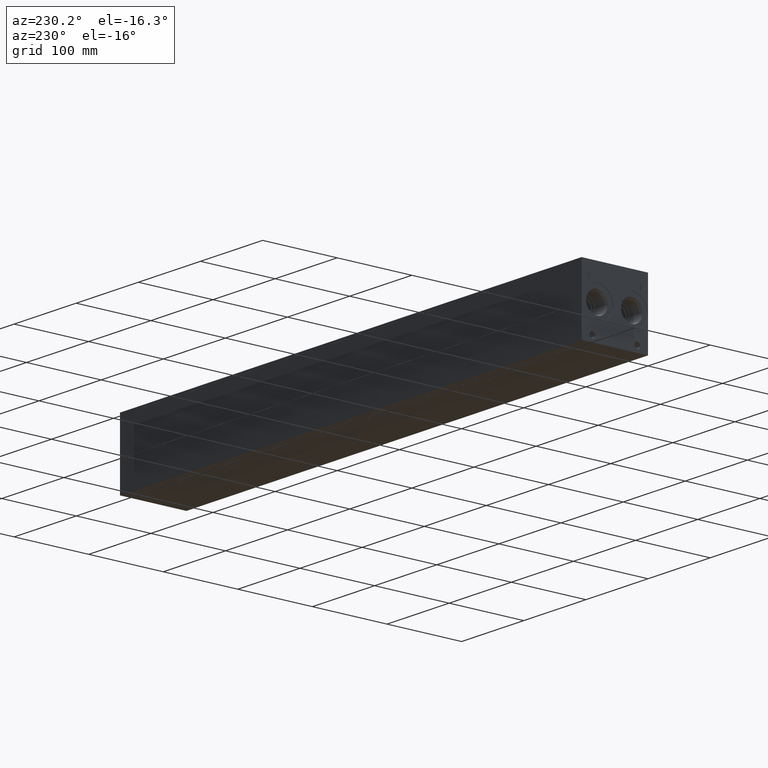
[diagram: clean part render]
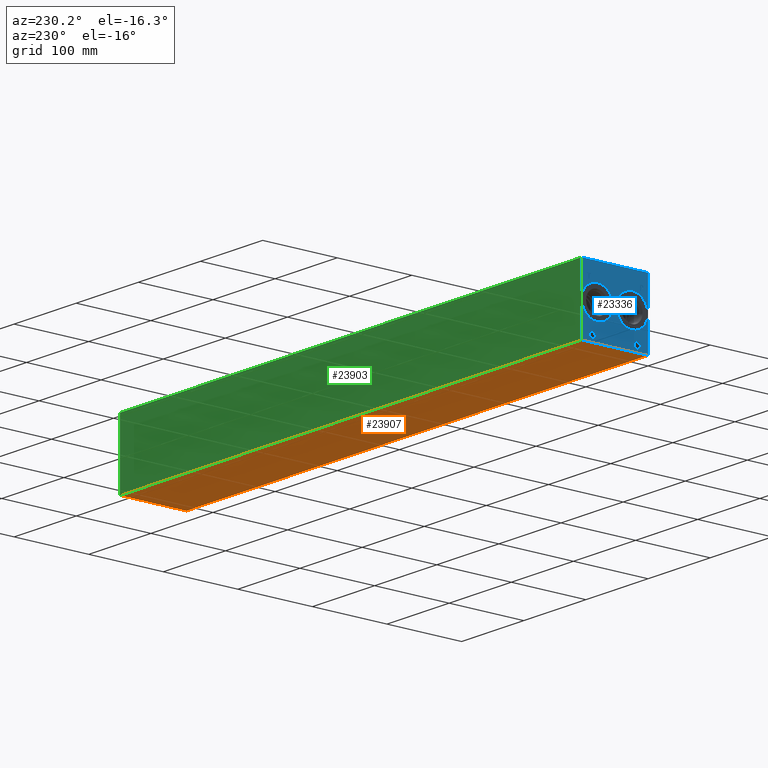
[diagram: same view with three faces highlighted in distinct colors, each labeled with its STEP entity id]
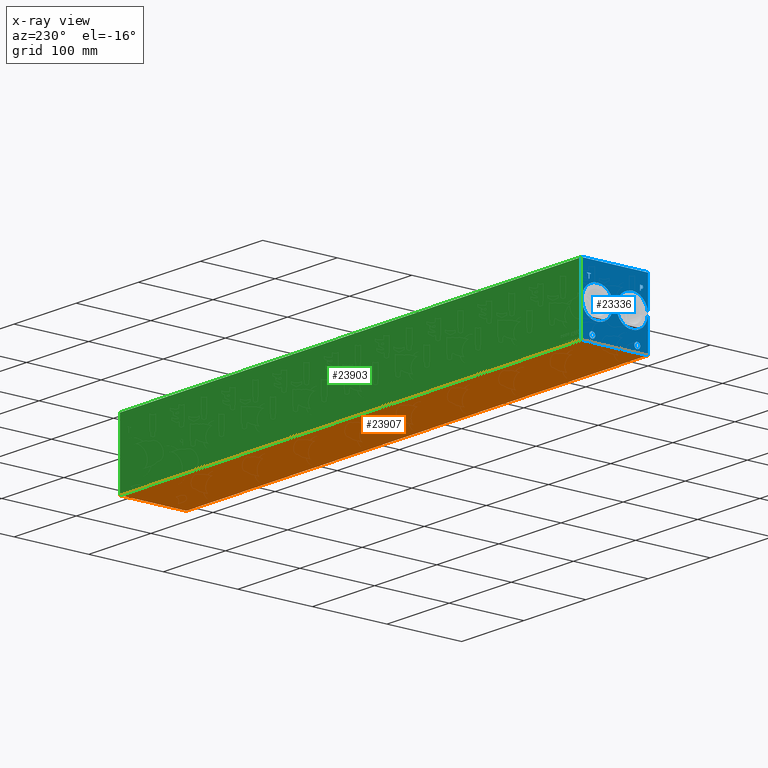
[diagram: x-ray of the same camera — body ghosted, the three highlighted faces saturated]
A machine part, auxiliary view with three faces highlighted in distinct colors.
The next image is the same camera in x-ray (body ghosted, the three faces saturated) — at least one of them is partly hidden behind the body in this view.
Their STEP definitions:

[orange] entity #23907 — the highlighted planar face has unit normal (0, 0, 1).
#3612=FACE_OUTER_BOUND('',#5134,.T.);
#5134=EDGE_LOOP('',(#21331,#21332,#21333,#21334));
#5168=LINE('',#31475,#7095);
#6493=LINE('',#38321,#8420);
#6528=LINE('',#38544,#8455);
#7060=LINE('',#41857,#8987);
#7095=VECTOR('',#25834,10.);
#8420=VECTOR('',#28075,10.);
#8455=VECTOR('',#28146,10.);
#8987=VECTOR('',#31394,10.);
#9011=VERTEX_POINT('',#31473);
#9012=VERTEX_POINT('',#31474);
#10267=VERTEX_POINT('',#38320);
#10309=VERTEX_POINT('',#38543);
#11366=EDGE_CURVE('',#9011,#9012,#5168,.T.);
#13211=EDGE_CURVE('',#9012,#10267,#6493,.T.);
#13270=EDGE_CURVE('',#10309,#9011,#6528,.T.);
#14665=EDGE_CURVE('',#10267,#10309,#7060,.T.);
#21331=ORIENTED_EDGE('',*,*,#11366,.F.);
#21332=ORIENTED_EDGE('',*,*,#13270,.F.);
#21333=ORIENTED_EDGE('',*,*,#14665,.F.);
#21334=ORIENTED_EDGE('',*,*,#13211,.F.);
#21921=PLANE('',#25772);
#23907=ADVANCED_FACE('',(#3612),#21921,.F.);
#25772=AXIS2_PLACEMENT_3D('',#41862,#31402,#31403);
#25834=DIRECTION('',(1.,0.,0.));
#28075=DIRECTION('',(0.,1.,0.));
#28146=DIRECTION('',(0.,-1.,0.));
#31394=DIRECTION('',(-1.,0.,0.));
#31402=DIRECTION('center_axis',(0.,0.,1.));
#31403=DIRECTION('ref_axis',(1.,0.,0.));
#31473=CARTESIAN_POINT('',(0.,0.,0.));
#31474=CARTESIAN_POINT('',(742.95,0.,0.));
#31475=CARTESIAN_POINT('',(0.,0.,0.));
#38320=CARTESIAN_POINT('',(742.95,88.9,0.));
#38321=CARTESIAN_POINT('',(742.95,0.,0.));
#38543=CARTESIAN_POINT('',(0.,88.9,0.));
#38544=CARTESIAN_POINT('',(0.,88.9,0.));
#41857=CARTESIAN_POINT('',(742.95,88.9,0.));
#41862=CARTESIAN_POINT('Origin',(371.475,44.45,0.));

[blue] entity #23336 — the highlighted planar face has unit normal (-1, 0, 0).
#730=CIRCLE('',#24411,21.0185);
#731=CIRCLE('',#24412,21.0185);
#732=CIRCLE('',#24413,21.0185);
#733=CIRCLE('',#24414,21.0185);
#734=CIRCLE('',#24415,3.9624);
#735=CIRCLE('',#24416,3.9624);
#736=CIRCLE('',#24417,3.9624);
#737=CIRCLE('',#24418,3.9624);
#2039=B_SPLINE_CURVE_WITH_KNOTS('',2,(#38445,#38446,#38447,#38448),
 .UNSPECIFIED.,.F.,.F.,(3,1,3),(0.,1.,2.),.UNSPECIFIED.);
#2041=B_SPLINE_CURVE_WITH_KNOTS('',2,(#38466,#38467,#38468,#38469),
 .UNSPECIFIED.,.F.,.F.,(3,1,3),(0.,1.,2.),.UNSPECIFIED.);
#2043=B_SPLINE_CURVE_WITH_KNOTS('',2,(#38515,#38516,#38517,#38518),
 .UNSPECIFIED.,.F.,.F.,(3,1,3),(0.,1.,2.),.UNSPECIFIED.);
#2045=B_SPLINE_CURVE_WITH_KNOTS('',2,(#38533,#38534,#38535,#38536),
 .UNSPECIFIED.,.F.,.F.,(3,1,3),(0.,1.,2.),.UNSPECIFIED.);
#2186=FACE_BOUND('',#4394,.T.);
#2187=FACE_BOUND('',#4395,.T.);
#2188=FACE_BOUND('',#4396,.T.);
#2189=FACE_BOUND('',#4397,.T.);
#2190=FACE_BOUND('',#4398,.T.);
#2191=FACE_BOUND('',#4399,.T.);
#3041=FACE_OUTER_BOUND('',#4393,.T.);
#4393=EDGE_LOOP('',(#18419,#18420,#18421,#18422));
#4394=EDGE_LOOP('',(#18423,#18424,#18425,#18426,#18427,#18428,#18429,#18430));
#4395=EDGE_LOOP('',(#18431,#18432));
#4396=EDGE_LOOP('',(#18433,#18434));
#4397=EDGE_LOOP('',(#18435,#18436));
#4398=EDGE_LOOP('',(#18437,#18438));
#4399=EDGE_LOOP('',(#18439,#18440,#18441,#18442,#18443,#18444,#18445,#18446,
#18447));
#5171=LINE('',#31480,#7098);
#6437=LINE('',#38072,#8364);
#6441=LINE('',#38080,#8368);
#6444=LINE('',#38086,#8371);
#6447=LINE('',#38092,#8374);
#6450=LINE('',#38098,#8377);
#6453=LINE('',#38104,#8380);
#6456=LINE('',#38110,#8383);
#6459=LINE('',#38115,#8386);
#6512=LINE('',#38478,#8439);
#6515=LINE('',#38484,#8442);
#6518=LINE('',#38490,#8445);
#6521=LINE('',#38496,#8448);
#6524=LINE('',#38502,#8451);
#6528=LINE('',#38544,#8455);
#6529=LINE('',#38546,#8456);
#6530=LINE('',#38547,#8457);
#7098=VECTOR('',#25837,10.);
#8364=VECTOR('',#27983,10.);
#8368=VECTOR('',#27989,10.);
#8371=VECTOR('',#27994,10.);
#8374=VECTOR('',#27999,10.);
#8377=VECTOR('',#28004,10.);
#8380=VECTOR('',#28009,10.);
#8383=VECTOR('',#28014,10.);
#8386=VECTOR('',#28019,10.);
#8439=VECTOR('',#28118,10.);
#8442=VECTOR('',#28123,10.);
#8445=VECTOR('',#28128,10.);
#8448=VECTOR('',#28133,10.);
#8451=VECTOR('',#28138,10.);
#8455=VECTOR('',#28146,10.);
#8456=VECTOR('',#28147,10.);
#8457=VECTOR('',#28148,10.);
#9011=VERTEX_POINT('',#31473);
#9014=VERTEX_POINT('',#31478);
#10219=VERTEX_POINT('',#38070);
#10220=VERTEX_POINT('',#38071);
#10223=VERTEX_POINT('',#38079);
#10225=VERTEX_POINT('',#38085);
#10227=VERTEX_POINT('',#38091);
#10229=VERTEX_POINT('',#38097);
#10231=VERTEX_POINT('',#38103);
#10233=VERTEX_POINT('',#38109);
#10291=VERTEX_POINT('',#38443);
#10292=VERTEX_POINT('',#38444);
#10295=VERTEX_POINT('',#38465);
#10297=VERTEX_POINT('',#38477);
#10299=VERTEX_POINT('',#38483);
#10301=VERTEX_POINT('',#38489);
#10303=VERTEX_POINT('',#38495);
#10305=VERTEX_POINT('',#38501);
#10307=VERTEX_POINT('',#38514);
#10309=VERTEX_POINT('',#38543);
#10310=VERTEX_POINT('',#38545);
#10311=VERTEX_POINT('',#38548);
#10312=VERTEX_POINT('',#38549);
#10313=VERTEX_POINT('',#38552);
#10314=VERTEX_POINT('',#38553);
#10315=VERTEX_POINT('',#38556);
#10316=VERTEX_POINT('',#38557);
#10317=VERTEX_POINT('',#38560);
#10318=VERTEX_POINT('',#38561);
#11369=EDGE_CURVE('',#9011,#9014,#5171,.T.);
#13139=EDGE_CURVE('',#10219,#10220,#6437,.T.);
#13143=EDGE_CURVE('',#10223,#10219,#6441,.T.);
#13146=EDGE_CURVE('',#10225,#10223,#6444,.T.);
#13149=EDGE_CURVE('',#10227,#10225,#6447,.T.);
#13152=EDGE_CURVE('',#10229,#10227,#6450,.T.);
#13155=EDGE_CURVE('',#10231,#10229,#6453,.T.);
#13158=EDGE_CURVE('',#10233,#10231,#6456,.T.);
#13161=EDGE_CURVE('',#10220,#10233,#6459,.T.);
#13243=EDGE_CURVE('',#10291,#10292,#2039,.T.);
#13247=EDGE_CURVE('',#10295,#10291,#2041,.T.);
#13250=EDGE_CURVE('',#10297,#10295,#6512,.T.);
#13253=EDGE_CURVE('',#10299,#10297,#6515,.T.);
#13256=EDGE_CURVE('',#10301,#10299,#6518,.T.);
#13259=EDGE_CURVE('',#10303,#10301,#6521,.T.);
#13262=EDGE_CURVE('',#10305,#10303,#6524,.T.);
#13265=EDGE_CURVE('',#10307,#10305,#2043,.T.);
#13268=EDGE_CURVE('',#10292,#10307,#2045,.T.);
#13270=EDGE_CURVE('',#10309,#9011,#6528,.T.);
#13271=EDGE_CURVE('',#10310,#9014,#6529,.T.);
#13272=EDGE_CURVE('',#10309,#10310,#6530,.T.);
#13273=EDGE_CURVE('',#10311,#10312,#730,.T.);
#13274=EDGE_CURVE('',#10312,#10311,#731,.T.);
#13275=EDGE_CURVE('',#10313,#10314,#732,.T.);
#13276=EDGE_CURVE('',#10314,#10313,#733,.T.);
#13277=EDGE_CURVE('',#10315,#10316,#734,.T.);
#13278=EDGE_CURVE('',#10316,#10315,#735,.T.);
#13279=EDGE_CURVE('',#10317,#10318,#736,.T.);
#13280=EDGE_CURVE('',#10318,#10317,#737,.T.);
#18419=ORIENTED_EDGE('',*,*,#13270,.T.);
#18420=ORIENTED_EDGE('',*,*,#11369,.T.);
#18421=ORIENTED_EDGE('',*,*,#13271,.F.);
#18422=ORIENTED_EDGE('',*,*,#13272,.F.);
#18423=ORIENTED_EDGE('',*,*,#13139,.T.);
#18424=ORIENTED_EDGE('',*,*,#13161,.T.);
#18425=ORIENTED_EDGE('',*,*,#13158,.T.);
#18426=ORIENTED_EDGE('',*,*,#13155,.T.);
#18427=ORIENTED_EDGE('',*,*,#13152,.T.);
#18428=ORIENTED_EDGE('',*,*,#13149,.T.);
#18429=ORIENTED_EDGE('',*,*,#13146,.T.);
#18430=ORIENTED_EDGE('',*,*,#13143,.T.);
#18431=ORIENTED_EDGE('',*,*,#13273,.T.);
#18432=ORIENTED_EDGE('',*,*,#13274,.T.);
#18433=ORIENTED_EDGE('',*,*,#13275,.T.);
#18434=ORIENTED_EDGE('',*,*,#13276,.T.);
#18435=ORIENTED_EDGE('',*,*,#13277,.T.);
#18436=ORIENTED_EDGE('',*,*,#13278,.T.);
#18437=ORIENTED_EDGE('',*,*,#13279,.T.);
#18438=ORIENTED_EDGE('',*,*,#13280,.T.);
#18439=ORIENTED_EDGE('',*,*,#13243,.T.);
#18440=ORIENTED_EDGE('',*,*,#13268,.T.);
#18441=ORIENTED_EDGE('',*,*,#13265,.T.);
#18442=ORIENTED_EDGE('',*,*,#13262,.T.);
#18443=ORIENTED_EDGE('',*,*,#13259,.T.);
#18444=ORIENTED_EDGE('',*,*,#13256,.T.);
#18445=ORIENTED_EDGE('',*,*,#13253,.T.);
#18446=ORIENTED_EDGE('',*,*,#13250,.T.);
#18447=ORIENTED_EDGE('',*,*,#13247,.T.);
#21777=PLANE('',#24410);
#23336=ADVANCED_FACE('',(#3041,#2186,#2187,#2188,#2189,#2190,#2191),#21777,
 .T.);
#24410=AXIS2_PLACEMENT_3D('',#38542,#28144,#28145);
#24411=AXIS2_PLACEMENT_3D('',#38550,#28149,#28150);
#24412=AXIS2_PLACEMENT_3D('',#38551,#28151,#28152);
#24413=AXIS2_PLACEMENT_3D('',#38554,#28153,#28154);
#24414=AXIS2_PLACEMENT_3D('',#38555,#28155,#28156);
#24415=AXIS2_PLACEMENT_3D('',#38558,#28157,#28158);
#24416=AXIS2_PLACEMENT_3D('',#38559,#28159,#28160);
#24417=AXIS2_PLACEMENT_3D('',#38562,#28161,#28162);
#24418=AXIS2_PLACEMENT_3D('',#38563,#28163,#28164);
#25837=DIRECTION('',(0.,0.,1.));
#27983=DIRECTION('',(0.,1.,1.0524411238433E-14));
#27989=DIRECTION('',(0.,3.17280044688052E-15,-1.));
#27994=DIRECTION('',(0.,1.,4.16909044227778E-15));
#27999=DIRECTION('',(0.,0.,-1.));
#28004=DIRECTION('',(0.,-1.,-3.47984565141734E-15));
#28009=DIRECTION('',(0.,0.,1.));
#28014=DIRECTION('',(0.,1.,0.));
#28019=DIRECTION('',(0.,-3.17280044688052E-15,1.));
#28118=DIRECTION('',(0.,-1.,-5.56775304226775E-15));
#28123=DIRECTION('',(0.,-3.14708893596576E-15,1.));
#28128=DIRECTION('',(0.,1.,0.));
#28133=DIRECTION('',(0.,3.75218139804999E-15,-1.));
#28138=DIRECTION('',(0.,1.,1.24172909575755E-14));
#28144=DIRECTION('center_axis',(-1.,0.,0.));
#28145=DIRECTION('ref_axis',(0.,-1.,0.));
#28146=DIRECTION('',(0.,-1.,0.));
#28147=DIRECTION('',(0.,-1.,0.));
#28148=DIRECTION('',(0.,0.,1.));
#28149=DIRECTION('center_axis',(1.,0.,0.));
#28150=DIRECTION('ref_axis',(0.,0.,1.));
#28151=DIRECTION('center_axis',(1.,0.,0.));
#28152=DIRECTION('ref_axis',(0.,0.,1.));
#28153=DIRECTION('center_axis',(1.,0.,0.));
#28154=DIRECTION('ref_axis',(0.,0.,1.));
#28155=DIRECTION('center_axis',(1.,0.,0.));
#28156=DIRECTION('ref_axis',(0.,0.,1.));
#28157=DIRECTION('center_axis',(1.,0.,0.));
#28158=DIRECTION('ref_axis',(0.,1.,0.));
#28159=DIRECTION('center_axis',(1.,0.,0.));
#28160=DIRECTION('ref_axis',(0.,1.,0.));
#28161=DIRECTION('center_axis',(1.,0.,0.));
#28162=DIRECTION('ref_axis',(0.,1.,0.));
#28163=DIRECTION('center_axis',(1.,0.,0.));
#28164=DIRECTION('ref_axis',(0.,1.,0.));
#31473=CARTESIAN_POINT('',(0.,0.,0.));
#31478=CARTESIAN_POINT('',(0.,0.,88.9));
#31480=CARTESIAN_POINT('',(0.,0.,0.));
#38070=CARTESIAN_POINT('',(0.,78.787084728547,67.46875));
#38071=CARTESIAN_POINT('',(0.,79.6310069200865,67.46875));
#38072=CARTESIAN_POINT('',(0.,83.8435423642731,67.46875));
#38079=CARTESIAN_POINT('',(0.,78.787084728547,73.0674533194815));
#38080=CARTESIAN_POINT('',(0.,78.7870847285471,36.5337266597407));
#38085=CARTESIAN_POINT('',(0.,76.6566957816119,73.0674533194815));
#38086=CARTESIAN_POINT('',(0.,82.7783478908058,73.0674533194815));
#38091=CARTESIAN_POINT('',(0.,76.6566957816119,73.8187499046325));
#38092=CARTESIAN_POINT('',(0.,76.6566957816119,36.9093749523163));
#38097=CARTESIAN_POINT('',(0.,81.7613958670216,73.8187499046326));
#38098=CARTESIAN_POINT('',(0.,85.3306979335107,73.8187499046326));
#38103=CARTESIAN_POINT('',(0.,81.7613958670216,73.0674533194815));
#38104=CARTESIAN_POINT('',(0.,81.7613958670216,36.5337266597408));
#38109=CARTESIAN_POINT('',(0.,79.6310069200865,73.0674533194815));
#38110=CARTESIAN_POINT('',(0.,84.2655034600432,73.0674533194815));
#38115=CARTESIAN_POINT('',(0.,79.6310069200866,33.734375));
#38443=CARTESIAN_POINT('',(0.,7.21193279764059,73.4225181439707));
#38444=CARTESIAN_POINT('',(0.,6.455490345468,71.9044873726039));
#38445=CARTESIAN_POINT('Ctrl Pts',(0.,7.21193279764059,73.4225181439707));
#38446=CARTESIAN_POINT('Ctrl Pts',(0.,6.85686797315142,73.1806623939563));
#38447=CARTESIAN_POINT('Ctrl Pts',(0.,6.455490345468,72.4345116758269));
#38448=CARTESIAN_POINT('Ctrl Pts',(0.,6.455490345468,71.9044873726039));
#38465=CARTESIAN_POINT('',(0.,8.87404784561168,73.8187499046325));
#38466=CARTESIAN_POINT('Ctrl Pts',(0.,8.87404784561168,73.8187499046325));
#38467=CARTESIAN_POINT('Ctrl Pts',(0.,8.30800247323763,73.8187499046325));
#38468=CARTESIAN_POINT('Ctrl Pts',(0.,7.51553895191395,73.6334986918556));
#38469=CARTESIAN_POINT('Ctrl Pts',(0.,7.21193279764059,73.4225181439707));
#38477=CARTESIAN_POINT('',(0.,10.4692666223022,73.8187499046326));
#38478=CARTESIAN_POINT('',(0.,49.6846333111509,73.8187499046328));
#38483=CARTESIAN_POINT('',(0.,10.4692666223022,67.46875));
#38484=CARTESIAN_POINT('',(0.,10.4692666223023,33.7343749999999));
#38489=CARTESIAN_POINT('',(0.,9.62534443076272,67.46875));
#38490=CARTESIAN_POINT('',(0.,49.2626722153814,67.46875));
#38495=CARTESIAN_POINT('',(0.,9.62534443076271,69.8358488299279));
#38496=CARTESIAN_POINT('',(0.,9.62534443076284,34.9179244149638));
#38501=CARTESIAN_POINT('',(0.,8.91006891476277,69.8358488299278));
#38502=CARTESIAN_POINT('',(0.,48.9050344573809,69.8358488299283));
#38514=CARTESIAN_POINT('',(0.,7.01124398379889,70.4945198086904));
#38515=CARTESIAN_POINT('Ctrl Pts',(0.,7.01124398379889,70.4945198086904));
#38516=CARTESIAN_POINT('Ctrl Pts',(0.,7.34057947318016,70.1703301863307));
#38517=CARTESIAN_POINT('Ctrl Pts',(0.,8.2308144679139,69.8358488299278));
#38518=CARTESIAN_POINT('Ctrl Pts',(0.,8.91006891476277,69.8358488299278));
#38533=CARTESIAN_POINT('Ctrl Pts',(0.,6.455490345468,71.9044873726039));
#38534=CARTESIAN_POINT('Ctrl Pts',(0.,6.455490345468,71.4928180108773));
#38535=CARTESIAN_POINT('Ctrl Pts',(0.,6.7488047656982,70.7518131597695));
#38536=CARTESIAN_POINT('Ctrl Pts',(0.,7.01124398379889,70.4945198086904));
#38542=CARTESIAN_POINT('Origin',(0.,88.9,0.));
#38543=CARTESIAN_POINT('',(0.,88.9,0.));
#38544=CARTESIAN_POINT('',(0.,88.9,0.));
#38545=CARTESIAN_POINT('',(0.,88.9,88.9));
#38546=CARTESIAN_POINT('',(0.,88.9,88.9));
#38547=CARTESIAN_POINT('',(0.,88.9,0.));
#38548=CARTESIAN_POINT('',(0.,21.082,65.4685));
#38549=CARTESIAN_POINT('',(0.,21.082,23.4315));
#38550=CARTESIAN_POINT('Origin',(0.,21.082,44.45));
#38551=CARTESIAN_POINT('Origin',(0.,21.082,44.45));
#38552=CARTESIAN_POINT('',(0.,67.818,65.4685));
#38553=CARTESIAN_POINT('',(0.,67.818,23.4315));
#38554=CARTESIAN_POINT('Origin',(0.,67.818,44.45));
#38555=CARTESIAN_POINT('Origin',(0.,67.818,44.45));
#38556=CARTESIAN_POINT('',(0.,18.2372,7.92479999999999));
#38557=CARTESIAN_POINT('',(0.,10.3124,7.92479999999999));
#38558=CARTESIAN_POINT('Origin',(0.,14.2748,7.92479999999999));
#38559=CARTESIAN_POINT('Origin',(0.,14.2748,7.92479999999999));
#38560=CARTESIAN_POINT('',(0.,78.5876,7.92479999999999));
#38561=CARTESIAN_POINT('',(0.,70.6628,7.92479999999999));
#38562=CARTESIAN_POINT('Origin',(0.,74.6252,7.92479999999999));
#38563=CARTESIAN_POINT('Origin',(0.,74.6252,7.92479999999999));

[green] entity #23903 — the highlighted planar face has unit normal (0, 1, 0).
#3608=FACE_OUTER_BOUND('',#5058,.T.);
#5058=EDGE_LOOP('',(#21165,#21166,#21167,#21168));
#6494=LINE('',#38323,#8421);
#6530=LINE('',#38547,#8457);
#7060=LINE('',#41857,#8987);
#7061=LINE('',#41858,#8988);
#8421=VECTOR('',#28076,10.);
#8457=VECTOR('',#28148,10.);
#8987=VECTOR('',#31394,10.);
#8988=VECTOR('',#31395,10.);
#10267=VERTEX_POINT('',#38320);
#10268=VERTEX_POINT('',#38322);
#10309=VERTEX_POINT('',#38543);
#10310=VERTEX_POINT('',#38545);
#13212=EDGE_CURVE('',#10267,#10268,#6494,.T.);
#13272=EDGE_CURVE('',#10309,#10310,#6530,.T.);
#14665=EDGE_CURVE('',#10267,#10309,#7060,.T.);
#14666=EDGE_CURVE('',#10268,#10310,#7061,.T.);
#21165=ORIENTED_EDGE('',*,*,#14665,.T.);
#21166=ORIENTED_EDGE('',*,*,#13272,.T.);
#21167=ORIENTED_EDGE('',*,*,#14666,.F.);
#21168=ORIENTED_EDGE('',*,*,#13212,.F.);
#21917=PLANE('',#25768);
#23903=ADVANCED_FACE('',(#3608),#21917,.T.);
#25768=AXIS2_PLACEMENT_3D('',#41856,#31392,#31393);
#28076=DIRECTION('',(0.,0.,1.));
#28148=DIRECTION('',(0.,0.,1.));
#31392=DIRECTION('center_axis',(0.,1.,0.));
#31393=DIRECTION('ref_axis',(-1.,0.,0.));
#31394=DIRECTION('',(-1.,0.,0.));
#31395=DIRECTION('',(-1.,0.,0.));
#38320=CARTESIAN_POINT('',(742.95,88.9,0.));
#38322=CARTESIAN_POINT('',(742.95,88.9,88.9));
#38323=CARTESIAN_POINT('',(742.95,88.9,0.));
#38543=CARTESIAN_POINT('',(0.,88.9,0.));
#38545=CARTESIAN_POINT('',(0.,88.9,88.9));
#38547=CARTESIAN_POINT('',(0.,88.9,0.));
#41856=CARTESIAN_POINT('Origin',(742.95,88.9,0.));
#41857=CARTESIAN_POINT('',(742.95,88.9,0.));
#41858=CARTESIAN_POINT('',(742.95,88.9,88.9));